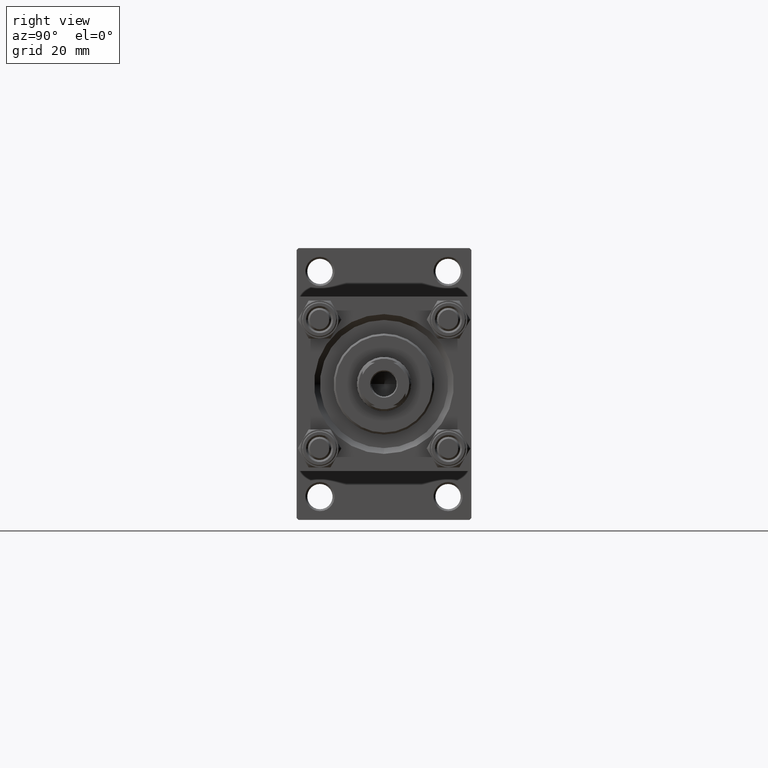
[diagram: clean part render]
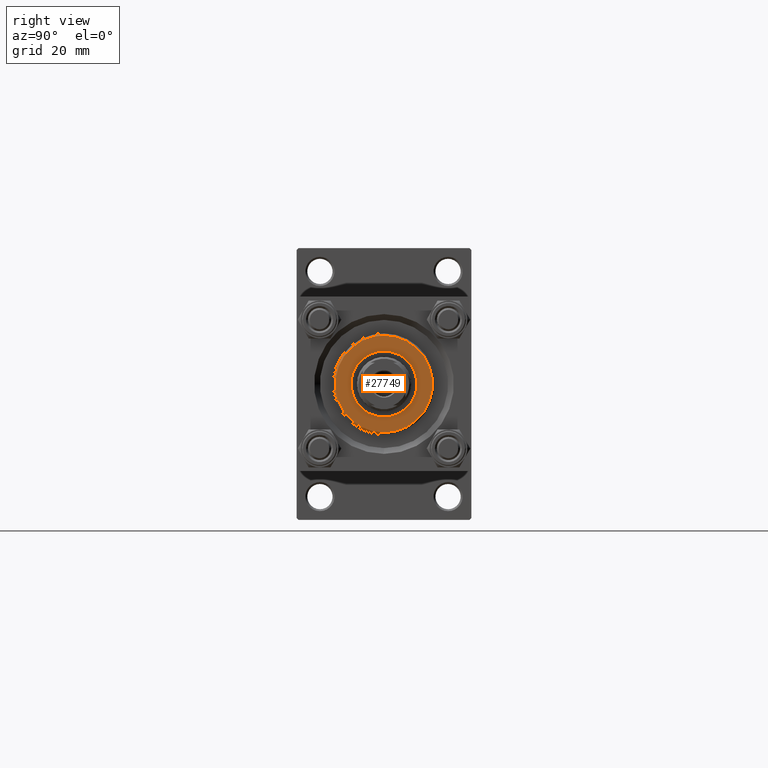
[diagram: same view with one face highlighted and labeled with its STEP entity id]
A machine part, right view. The second image highlights one B-rep face of the part: STEP entity #27749.
In plain terms, the highlighted planar face has unit normal (1, 0, 0).
Its self-contained STEP definition (entity closure, byte-faithful):
#570 = CARTESIAN_POINT ( 'NONE',  ( 0.000000000000000000, 0.000000000000000000, 36.69999999999999574 ) ) ;
#686 = DIRECTION ( 'NONE',  ( 0.000000000000000000, 0.000000000000000000, 1.000000000000000000 ) ) ;
#3248 = DIRECTION ( 'NONE',  ( 1.000000000000000000, 0.000000000000000000, 0.000000000000000000 ) ) ;
#3616 = CARTESIAN_POINT ( 'NONE',  ( 0.000000000000000000, 0.000000000000000000, 36.69999999999999574 ) ) ;
#5654 = AXIS2_PLACEMENT_3D ( 'NONE', #37604, #11097, #33809 ) ;
#6316 = FACE_BOUND ( 'NONE', #29866, .T. ) ;
#6579 = FACE_OUTER_BOUND ( 'NONE', #43017, .T. ) ;
#7603 = CIRCLE ( 'NONE', #30137, 12.50000000000001066 ) ;
#9342 = EDGE_CURVE ( 'NONE', #26476, #20088, #47723, .T. ) ;
#11097 = DIRECTION ( 'NONE',  ( 0.000000000000000000, 0.000000000000000000, 1.000000000000000000 ) ) ;
#11341 = DIRECTION ( 'NONE',  ( 0.000000000000000000, 0.000000000000000000, 1.000000000000000000 ) ) ;
#16385 = ORIENTED_EDGE ( 'NONE', *, *, #9342, .F. ) ;
#19804 = DIRECTION ( 'NONE',  ( 0.000000000000000000, 0.000000000000000000, 1.000000000000000000 ) ) ;
#20088 = VERTEX_POINT ( 'NONE', #45903 ) ;
#21107 = AXIS2_PLACEMENT_3D ( 'NONE', #3616, #19804, #31390 ) ;
#21114 = CARTESIAN_POINT ( 'NONE',  ( 12.50000000000001066, 1.561424668912876097E-15, 36.69999999999999574 ) ) ;
#21977 = PLANE ( 'NONE',  #5654 ) ;
#22083 = AXIS2_PLACEMENT_3D ( 'NONE', #22443, #11341, #3248 ) ;
#22443 = CARTESIAN_POINT ( 'NONE',  ( 0.000000000000000000, 0.000000000000000000, 36.69999999999999574 ) ) ;
#22875 = CIRCLE ( 'NONE', #22083, 8.500000000000000000 ) ;
#23083 = EDGE_CURVE ( 'NONE', #34535, #26816, #25800, .T. ) ;
#23573 = DIRECTION ( 'NONE',  ( 0.000000000000000000, 0.000000000000000000, 1.000000000000000000 ) ) ;
#25800 = CIRCLE ( 'NONE', #28216, 12.50000000000001066 ) ;
#26216 = CARTESIAN_POINT ( 'NONE',  ( -12.50000000000001066, 0.000000000000000000, 36.69999999999999574 ) ) ;
#26476 = VERTEX_POINT ( 'NONE', #42191 ) ;
#26816 = VERTEX_POINT ( 'NONE', #26216 ) ;
#27472 = DIRECTION ( 'NONE',  ( 1.000000000000000000, 0.000000000000000000, 0.000000000000000000 ) ) ;
#27749 = ADVANCED_FACE ( 'NONE', ( #6316, #6579 ), #21977, .T. ) ;
#28216 = AXIS2_PLACEMENT_3D ( 'NONE', #42640, #686, #27472 ) ;
#29866 = EDGE_LOOP ( 'NONE', ( #38270, #16385 ) ) ;
#30137 = AXIS2_PLACEMENT_3D ( 'NONE', #570, #23573, #35166 ) ;
#30681 = ORIENTED_EDGE ( 'NONE', *, *, #23083, .T. ) ;
#31014 = ORIENTED_EDGE ( 'NONE', *, *, #40577, .T. ) ;
#31390 = DIRECTION ( 'NONE',  ( 1.000000000000000000, 0.000000000000000000, 0.000000000000000000 ) ) ;
#33809 = DIRECTION ( 'NONE',  ( 1.000000000000000000, 0.000000000000000000, -0.000000000000000000 ) ) ;
#34535 = VERTEX_POINT ( 'NONE', #21114 ) ;
#35166 = DIRECTION ( 'NONE',  ( 1.000000000000000000, 0.000000000000000000, 0.000000000000000000 ) ) ;
#35981 = EDGE_CURVE ( 'NONE', #20088, #26476, #22875, .T. ) ;
#37604 = CARTESIAN_POINT ( 'NONE',  ( 0.000000000000000000, 0.000000000000000000, 36.69999999999999574 ) ) ;
#38270 = ORIENTED_EDGE ( 'NONE', *, *, #35981, .F. ) ;
#40577 = EDGE_CURVE ( 'NONE', #26816, #34535, #7603, .T. ) ;
#42191 = CARTESIAN_POINT ( 'NONE',  ( -8.500000000000000000, 1.040949779275250140E-15, 36.69999999999999574 ) ) ;
#42640 = CARTESIAN_POINT ( 'NONE',  ( 0.000000000000000000, 0.000000000000000000, 36.69999999999999574 ) ) ;
#43017 = EDGE_LOOP ( 'NONE', ( #31014, #30681 ) ) ;
#45903 = CARTESIAN_POINT ( 'NONE',  ( 8.500000000000000000, 0.000000000000000000, 36.69999999999999574 ) ) ;
#47723 = CIRCLE ( 'NONE', #21107, 8.500000000000000000 ) ;